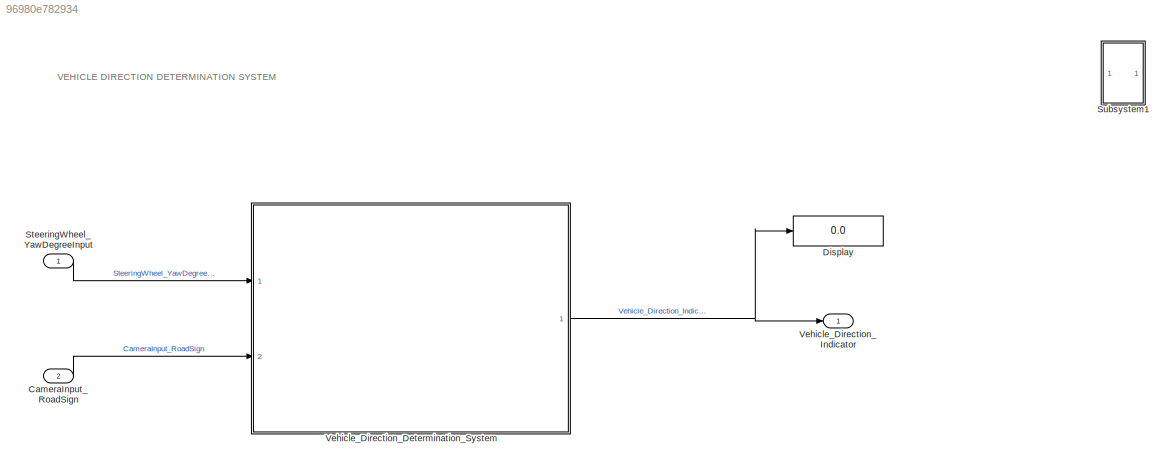
MODEL slx_96980e782934
KIND model
CONFIG AbsTol = auto
CONFIG EnableMultiTasking = off
CONFIG FixedStep = 0.01
CONFIG MaxStep = auto
CONFIG MinStep = auto
CONFIG RelTol = 1e-3
CONFIG SampleTimeConstraint = Unconstrained
CONFIG Solver = FixedStepAuto
CONFIG SolverName = FixedStepAuto
CONFIG StartTime = 0.0
CONFIG StopTime = 2000
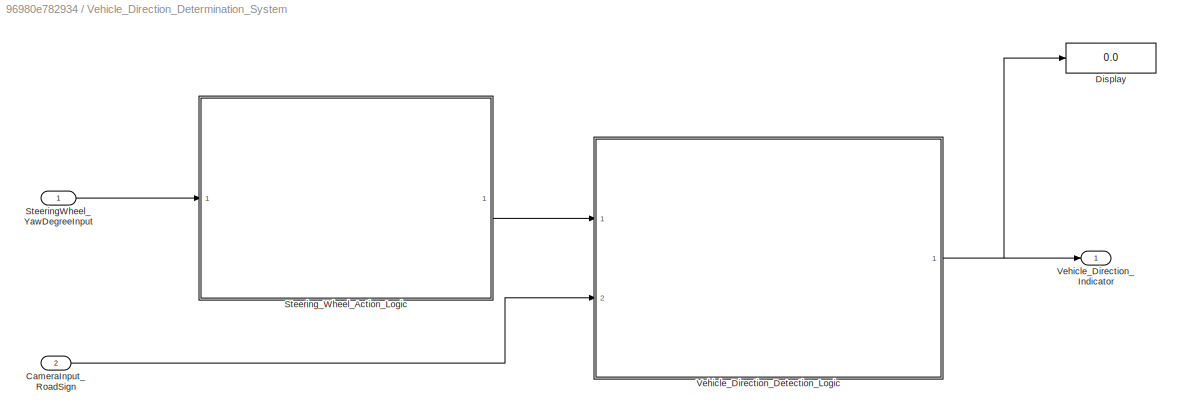
BLOCK [SubSystem]  Vehicle_Direction_Determination_System
  Ports = [2, 1]
  RequestExecContextInheritance = off
BLOCK [Inport]  Vehicle_Direction_Determination_System/CameraInput_RoadSign
  IconDisplay = Port number
  Port = 2
BLOCK [Display]  Vehicle_Direction_Determination_System/Display
  Decimation = 1
  Ports = [1]
BLOCK [Inport]  Vehicle_Direction_Determination_System/SteeringWheel_YawDegreeInput
  IconDisplay = Port number
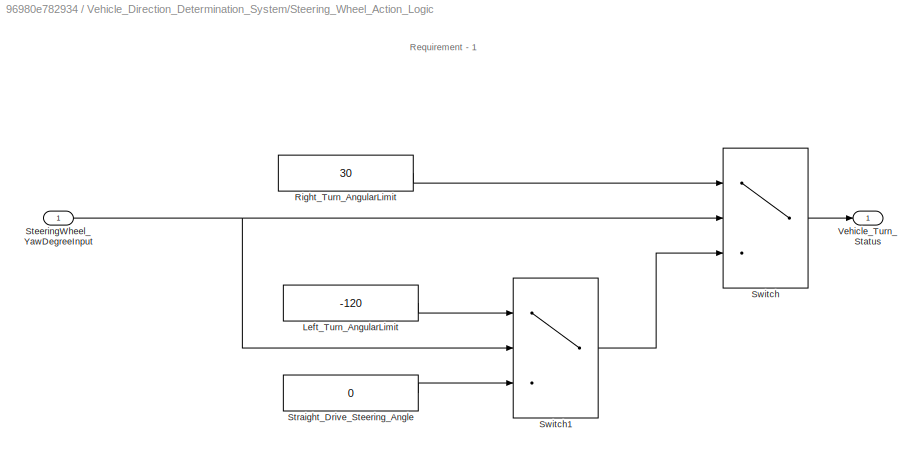
BLOCK [SubSystem]  Vehicle_Direction_Determination_System/Steering_Wheel_Action_Logic
  Ports = [1, 1]
  RequestExecContextInheritance = off
BLOCK [Constant]  Vehicle_Direction_Determination_System/Steering_Wheel_Action_Logic/Left_Turn_AngularLimit
  OutDataTypeStr = int16
  OutMax = 180
  OutMin = -180
  Value = -120
BLOCK [Constant]  Vehicle_Direction_Determination_System/Steering_Wheel_Action_Logic/Right_Turn_AngularLimit
  OutDataTypeStr = int16
  OutMax = 180
  OutMin = -180
  Value = 30
BLOCK [Inport]  Vehicle_Direction_Determination_System/Steering_Wheel_Action_Logic/SteeringWheel_YawDegreeInput
  IconDisplay = Port number
BLOCK [Constant]  Vehicle_Direction_Determination_System/Steering_Wheel_Action_Logic/Straight_Drive_Steering_Angle
  OutDataTypeStr = int16
  OutMax = 180
  OutMin = -180
  Value = 0
BLOCK [Switch]  Vehicle_Direction_Determination_System/Steering_Wheel_Action_Logic/Switch
  InputSameDT = off
  SaturateOnIntegerOverflow = off
  Threshold = 30
BLOCK [Switch]  Vehicle_Direction_Determination_System/Steering_Wheel_Action_Logic/Switch1
  Criteria = u2 ~= 0
  InputSameDT = off
  SaturateOnIntegerOverflow = off
BLOCK [Outport]  Vehicle_Direction_Determination_System/Steering_Wheel_Action_Logic/Vehicle_Turn_Status
  IconDisplay = Port number
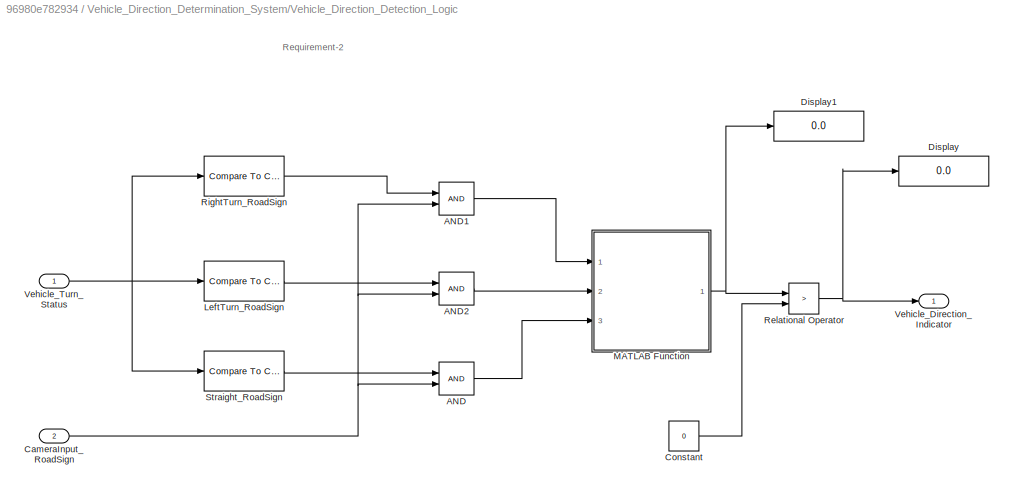
BLOCK [SubSystem]  Vehicle_Direction_Determination_System/Vehicle_Direction_Detection_Logic
  Ports = [2, 1]
  RequestExecContextInheritance = off
BLOCK [Logic]  Vehicle_Direction_Determination_System/Vehicle_Direction_Detection_Logic/AND
  AllPortsSameDT = off
  OutDataTypeStr = boolean
  Ports = [2, 1]
BLOCK [Logic]  Vehicle_Direction_Determination_System/Vehicle_Direction_Detection_Logic/AND1
  AllPortsSameDT = off
  OutDataTypeStr = boolean
  Ports = [2, 1]
BLOCK [Logic]  Vehicle_Direction_Determination_System/Vehicle_Direction_Detection_Logic/AND2
  AllPortsSameDT = off
  OutDataTypeStr = boolean
  Ports = [2, 1]
BLOCK [Inport]  Vehicle_Direction_Determination_System/Vehicle_Direction_Detection_Logic/CameraInput_RoadSign
  IconDisplay = Port number
  Port = 2
BLOCK [Constant]  Vehicle_Direction_Determination_System/Vehicle_Direction_Detection_Logic/Constant
  Value = 0
BLOCK [Display]  Vehicle_Direction_Determination_System/Vehicle_Direction_Detection_Logic/Display
  Decimation = 1
  Ports = [1]
BLOCK [Display]  Vehicle_Direction_Determination_System/Vehicle_Direction_Detection_Logic/Display1
  Decimation = 1
  Ports = [1]
BLOCK [Reference]  Vehicle_Direction_Determination_System/Vehicle_Direction_Detection_Logic/LeftTurn_RoadSign  REF=simulink/Logic and Bit
Operations/Compare
To Constant
  Ports = [1, 1]
  SourceBlock = simulink/Logic and Bit\nOperations/Compare\nTo Constant
  SourceProductBaseCode = SL
  SourceProductName = Simulink
  SourceType = Compare To Constant
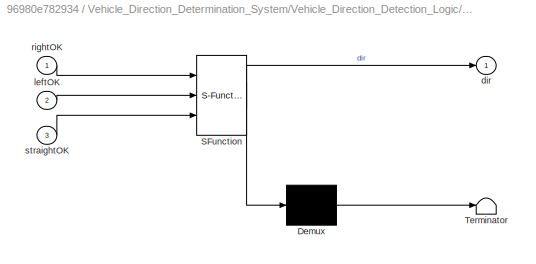
BLOCK [SubSystem]  Vehicle_Direction_Determination_System/Vehicle_Direction_Detection_Logic/MATLAB Function
  ErrorFcn = Stateflow.Translate.translate
  PermitHierarchicalResolution = ExplicitOnly
  Ports = [3, 1]
  RequestExecContextInheritance = off
  SFBlockType = MATLAB Function
  TreatAsAtomicUnit = on
BLOCK [Demux]  Vehicle_Direction_Determination_System/Vehicle_Direction_Detection_Logic/MATLAB Function/ Demux 
  Outputs = 1
  Ports = [1, 1]
BLOCK [S-Function]  Vehicle_Direction_Determination_System/Vehicle_Direction_Detection_Logic/MATLAB Function/ SFunction 
  EnableBusSupport = on
  FunctionName = sf_sfun
  PortCounts = [3 2]
  Ports = [3, 2]
  SFcnIsStateOwnerBlock = off
  SFunctionDeploymentMode = off
  Tag = Stateflow S-Function Vehicle_direction_detection 2
BLOCK [Terminator]  Vehicle_Direction_Determination_System/Vehicle_Direction_Detection_Logic/MATLAB Function/ Terminator 
BLOCK [Outport]  Vehicle_Direction_Determination_System/Vehicle_Direction_Detection_Logic/MATLAB Function/dir
  IconDisplay = Port number
BLOCK [Inport]  Vehicle_Direction_Determination_System/Vehicle_Direction_Detection_Logic/MATLAB Function/leftOK
  IconDisplay = Port number
  Port = 2
BLOCK [Inport]  Vehicle_Direction_Determination_System/Vehicle_Direction_Detection_Logic/MATLAB Function/rightOK
  IconDisplay = Port number
BLOCK [Inport]  Vehicle_Direction_Determination_System/Vehicle_Direction_Detection_Logic/MATLAB Function/straightOK
  IconDisplay = Port number
  Port = 3
BLOCK [RelationalOperator]  Vehicle_Direction_Determination_System/Vehicle_Direction_Detection_Logic/Relational Operator
  InputSameDT = off
  Operator = >
  OutDataTypeStr = boolean
  Ports = [2, 1]
  RndMeth = Simplest
BLOCK [Reference]  Vehicle_Direction_Determination_System/Vehicle_Direction_Detection_Logic/RightTurn_RoadSign  REF=simulink/Logic and Bit
Operations/Compare
To Constant
  Ports = [1, 1]
  SourceBlock = simulink/Logic and Bit\nOperations/Compare\nTo Constant
  SourceProductBaseCode = SL
  SourceProductName = Simulink
  SourceType = Compare To Constant
BLOCK [Reference]  Vehicle_Direction_Determination_System/Vehicle_Direction_Detection_Logic/Straight_RoadSign  REF=simulink/Logic and Bit
Operations/Compare
To Constant
  Ports = [1, 1]
  SourceBlock = simulink/Logic and Bit\nOperations/Compare\nTo Constant
  SourceProductBaseCode = SL
  SourceProductName = Simulink
  SourceType = Compare To Constant
BLOCK [Outport]  Vehicle_Direction_Determination_System/Vehicle_Direction_Detection_Logic/Vehicle_Direction_Indicator
  IconDisplay = Port number
BLOCK [Inport]  Vehicle_Direction_Determination_System/Vehicle_Direction_Detection_Logic/Vehicle_Turn_Status
  IconDisplay = Port number
BLOCK [Outport]  Vehicle_Direction_Determination_System/Vehicle_Direction_Indicator
  IconDisplay = Port number
BLOCK [Inport] CameraInput_RoadSign
  IconDisplay = Port number
  Port = 2
BLOCK [Display] Display
  Decimation = 1
  Ports = [1]
BLOCK [Inport] SteeringWheel_YawDegreeInput
  IconDisplay = Port number
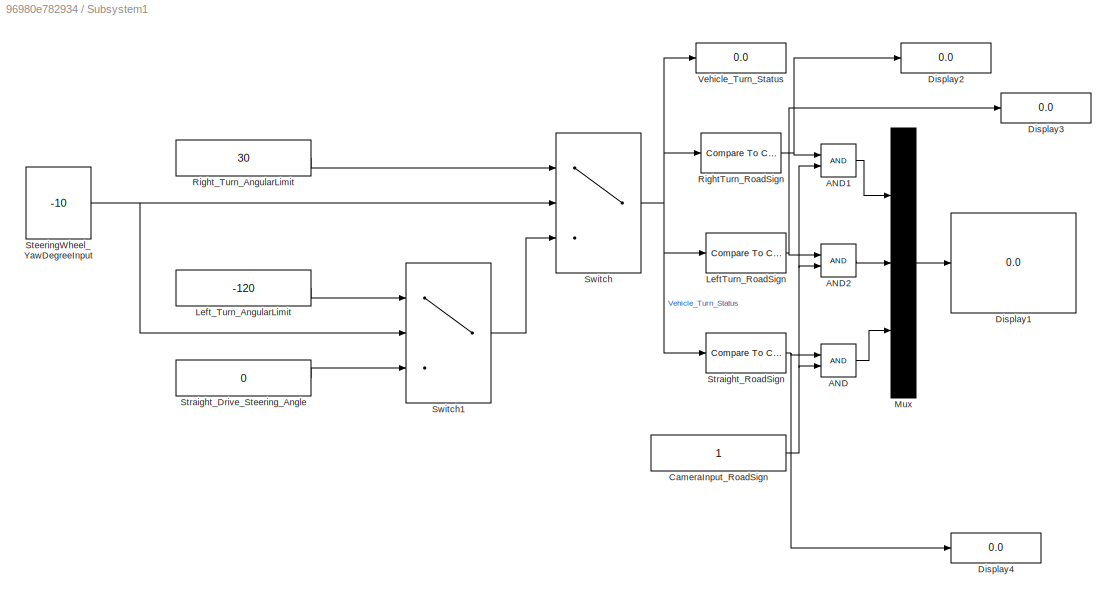
BLOCK [SubSystem] Subsystem1
  Ports = []
  RequestExecContextInheritance = off
BLOCK [Logic] Subsystem1/AND
  AllPortsSameDT = off
  OutDataTypeStr = boolean
  Ports = [2, 1]
BLOCK [Logic] Subsystem1/AND1
  AllPortsSameDT = off
  OutDataTypeStr = boolean
  Ports = [2, 1]
BLOCK [Logic] Subsystem1/AND2
  AllPortsSameDT = off
  OutDataTypeStr = boolean
  Ports = [2, 1]
BLOCK [Constant] Subsystem1/CameraInput_RoadSign
  OutDataTypeStr = boolean
  OutMax = 1
  OutMin = 0
BLOCK [Display] Subsystem1/Display1
  Decimation = 1
  Ports = [1]
BLOCK [Display] Subsystem1/Display2
  Decimation = 1
  Ports = [1]
BLOCK [Display] Subsystem1/Display3
  Decimation = 1
  Ports = [1]
BLOCK [Display] Subsystem1/Display4
  Decimation = 1
  Ports = [1]
BLOCK [Reference] Subsystem1/LeftTurn_RoadSign  REF=simulink/Logic and Bit
Operations/Compare
To Constant
  Ports = [1, 1]
  SourceBlock = simulink/Logic and Bit\nOperations/Compare\nTo Constant
  SourceProductBaseCode = SL
  SourceProductName = Simulink
  SourceType = Compare To Constant
BLOCK [Constant] Subsystem1/Left_Turn_AngularLimit
  OutDataTypeStr = int16
  OutMax = 180
  OutMin = -180
  Value = -120
BLOCK [Mux] Subsystem1/Mux
  DisplayOption = bar
  Inputs = 3
  Ports = [3, 1]
BLOCK [Reference] Subsystem1/RightTurn_RoadSign  REF=simulink/Logic and Bit
Operations/Compare
To Constant
  Ports = [1, 1]
  SourceBlock = simulink/Logic and Bit\nOperations/Compare\nTo Constant
  SourceProductBaseCode = SL
  SourceProductName = Simulink
  SourceType = Compare To Constant
BLOCK [Constant] Subsystem1/Right_Turn_AngularLimit
  OutDataTypeStr = int16
  OutMax = 180
  OutMin = -180
  Value = 30
BLOCK [Constant] Subsystem1/SteeringWheel_YawDegreeInput
  OutDataTypeStr = int16
  OutMax = 180
  OutMin = -180
  Value = -10
BLOCK [Constant] Subsystem1/Straight_Drive_Steering_Angle
  OutDataTypeStr = int16
  OutMax = 180
  OutMin = -180
  Value = 0
BLOCK [Reference] Subsystem1/Straight_RoadSign  REF=simulink/Logic and Bit
Operations/Compare
To Constant
  Ports = [1, 1]
  SourceBlock = simulink/Logic and Bit\nOperations/Compare\nTo Constant
  SourceProductBaseCode = SL
  SourceProductName = Simulink
  SourceType = Compare To Constant
BLOCK [Switch] Subsystem1/Switch
  InputSameDT = off
  SaturateOnIntegerOverflow = off
  Threshold = 30
BLOCK [Switch] Subsystem1/Switch1
  Criteria = u2 ~= 0
  InputSameDT = off
  SaturateOnIntegerOverflow = off
BLOCK [Display] Subsystem1/Vehicle_Turn_Status
  Decimation = 1
  Ports = [1]
BLOCK [Outport] Vehicle_Direction_Indicator
  IconDisplay = Port number
ANNOTATION (root): VEHICLE DIRECTION DETERMINATION SYSTEM
ANNOTATION  Vehicle_Direction_Determination_System/Steering_Wheel_Action_Logic: Requirement - 1
ANNOTATION  Vehicle_Direction_Determination_System/Vehicle_Direction_Detection_Logic: Requirement-2
LINE  Vehicle_Direction_Determination_System/CameraInput_RoadSign:1 ->  Vehicle_Direction_Determination_System/Vehicle_Direction_Detection_Logic:2
LINE  Vehicle_Direction_Determination_System/SteeringWheel_YawDegreeInput:1 ->  Vehicle_Direction_Determination_System/Steering_Wheel_Action_Logic:1
LINE  Vehicle_Direction_Determination_System/Steering_Wheel_Action_Logic/Left_Turn_AngularLimit:1 ->  Vehicle_Direction_Determination_System/Steering_Wheel_Action_Logic/Switch1:1
LINE  Vehicle_Direction_Determination_System/Steering_Wheel_Action_Logic/Right_Turn_AngularLimit:1 ->  Vehicle_Direction_Determination_System/Steering_Wheel_Action_Logic/Switch:1
NET  Vehicle_Direction_Determination_System/Steering_Wheel_Action_Logic/SteeringWheel_YawDegreeInput:1 ->  Vehicle_Direction_Determination_System/Steering_Wheel_Action_Logic/Switch1:2,  Vehicle_Direction_Determination_System/Steering_Wheel_Action_Logic/Switch:2
LINE  Vehicle_Direction_Determination_System/Steering_Wheel_Action_Logic/Straight_Drive_Steering_Angle:1 ->  Vehicle_Direction_Determination_System/Steering_Wheel_Action_Logic/Switch1:3
LINE  Vehicle_Direction_Determination_System/Steering_Wheel_Action_Logic/Switch1:1 ->  Vehicle_Direction_Determination_System/Steering_Wheel_Action_Logic/Switch:3
LINE  Vehicle_Direction_Determination_System/Steering_Wheel_Action_Logic/Switch:1 ->  Vehicle_Direction_Determination_System/Steering_Wheel_Action_Logic/Vehicle_Turn_Status:1
LINE  Vehicle_Direction_Determination_System/Steering_Wheel_Action_Logic:1 ->  Vehicle_Direction_Determination_System/Vehicle_Direction_Detection_Logic:1
LINE  Vehicle_Direction_Determination_System/Vehicle_Direction_Detection_Logic/AND1:1 ->  Vehicle_Direction_Determination_System/Vehicle_Direction_Detection_Logic/MATLAB Function:1
LINE  Vehicle_Direction_Determination_System/Vehicle_Direction_Detection_Logic/AND2:1 ->  Vehicle_Direction_Determination_System/Vehicle_Direction_Detection_Logic/MATLAB Function:2
LINE  Vehicle_Direction_Determination_System/Vehicle_Direction_Detection_Logic/AND:1 ->  Vehicle_Direction_Determination_System/Vehicle_Direction_Detection_Logic/MATLAB Function:3
NET  Vehicle_Direction_Determination_System/Vehicle_Direction_Detection_Logic/CameraInput_RoadSign:1 ->  Vehicle_Direction_Determination_System/Vehicle_Direction_Detection_Logic/AND1:2,  Vehicle_Direction_Determination_System/Vehicle_Direction_Detection_Logic/AND2:2,  Vehicle_Direction_Determination_System/Vehicle_Direction_Detection_Logic/AND:2
LINE  Vehicle_Direction_Determination_System/Vehicle_Direction_Detection_Logic/Constant:1 ->  Vehicle_Direction_Determination_System/Vehicle_Direction_Detection_Logic/Relational Operator:2
LINE  Vehicle_Direction_Determination_System/Vehicle_Direction_Detection_Logic/LeftTurn_RoadSign:1 ->  Vehicle_Direction_Determination_System/Vehicle_Direction_Detection_Logic/AND2:1
NET  Vehicle_Direction_Determination_System/Vehicle_Direction_Detection_Logic/MATLAB Function:1 ->  Vehicle_Direction_Determination_System/Vehicle_Direction_Detection_Logic/Display1:1,  Vehicle_Direction_Determination_System/Vehicle_Direction_Detection_Logic/Relational Operator:1
NET  Vehicle_Direction_Determination_System/Vehicle_Direction_Detection_Logic/Relational Operator:1 ->  Vehicle_Direction_Determination_System/Vehicle_Direction_Detection_Logic/Display:1,  Vehicle_Direction_Determination_System/Vehicle_Direction_Detection_Logic/Vehicle_Direction_Indicator:1
LINE  Vehicle_Direction_Determination_System/Vehicle_Direction_Detection_Logic/RightTurn_RoadSign:1 ->  Vehicle_Direction_Determination_System/Vehicle_Direction_Detection_Logic/AND1:1
LINE  Vehicle_Direction_Determination_System/Vehicle_Direction_Detection_Logic/Straight_RoadSign:1 ->  Vehicle_Direction_Determination_System/Vehicle_Direction_Detection_Logic/AND:1
NET  Vehicle_Direction_Determination_System/Vehicle_Direction_Detection_Logic/Vehicle_Turn_Status:1 ->  Vehicle_Direction_Determination_System/Vehicle_Direction_Detection_Logic/LeftTurn_RoadSign:1,  Vehicle_Direction_Determination_System/Vehicle_Direction_Detection_Logic/RightTurn_RoadSign:1,  Vehicle_Direction_Determination_System/Vehicle_Direction_Detection_Logic/Straight_RoadSign:1
NET  Vehicle_Direction_Determination_System/Vehicle_Direction_Detection_Logic:1 ->  Vehicle_Direction_Determination_System/Display:1,  Vehicle_Direction_Determination_System/Vehicle_Direction_Indicator:1
NET  Vehicle_Direction_Determination_System:1 -> Display:1, Vehicle_Direction_Indicator:1
LINE CameraInput_RoadSign:1 ->  Vehicle_Direction_Determination_System:2
LINE SteeringWheel_YawDegreeInput:1 ->  Vehicle_Direction_Determination_System:1
LINE Subsystem1/AND1:1 -> Subsystem1/Mux:1
LINE Subsystem1/AND2:1 -> Subsystem1/Mux:2
LINE Subsystem1/AND:1 -> Subsystem1/Mux:3
NET Subsystem1/CameraInput_RoadSign:1 -> Subsystem1/AND1:2, Subsystem1/AND2:2, Subsystem1/AND:2
NET Subsystem1/LeftTurn_RoadSign:1 -> Subsystem1/AND2:1, Subsystem1/Display3:1
LINE Subsystem1/Left_Turn_AngularLimit:1 -> Subsystem1/Switch1:1
LINE Subsystem1/Mux:1 -> Subsystem1/Display1:1
NET Subsystem1/RightTurn_RoadSign:1 -> Subsystem1/AND1:1, Subsystem1/Display2:1
LINE Subsystem1/Right_Turn_AngularLimit:1 -> Subsystem1/Switch:1
NET Subsystem1/SteeringWheel_YawDegreeInput:1 -> Subsystem1/Switch1:2, Subsystem1/Switch:2
LINE Subsystem1/Straight_Drive_Steering_Angle:1 -> Subsystem1/Switch1:3
NET Subsystem1/Straight_RoadSign:1 -> Subsystem1/AND:1, Subsystem1/Display4:1
LINE Subsystem1/Switch1:1 -> Subsystem1/Switch:3
NET Subsystem1/Switch:1 -> Subsystem1/LeftTurn_RoadSign:1, Subsystem1/RightTurn_RoadSign:1, Subsystem1/Straight_RoadSign:1, Subsystem1/Vehicle_Turn_Status:1
note: NET lines group one-source signal fan-out (src -> all destinations, sorted); 1:1 wires keep LINE
CHART  Vehicle_Direction_Determination_System/Vehicle_Direction_Detection_Logic/MATLAB Function states=1 transitions=1
  STATE_LABEL 'eML_blk_kernel()'
  STATE_LABEL 'SCRIPT:\nfunction dir = getDirection(rightOK, leftOK, straightOK)\n%#codegen\n    dir = int8(0);  % Default: 0 = No direction\n    if rightOK\n        dir = int8(1);  % 1 = Right\n    elseif leftOK\n        dir = int8(2);  % 2 = Left\n    elseif straightOK\n        dir = int8(3);  % 3 = Straight\n    end\nend\n'
